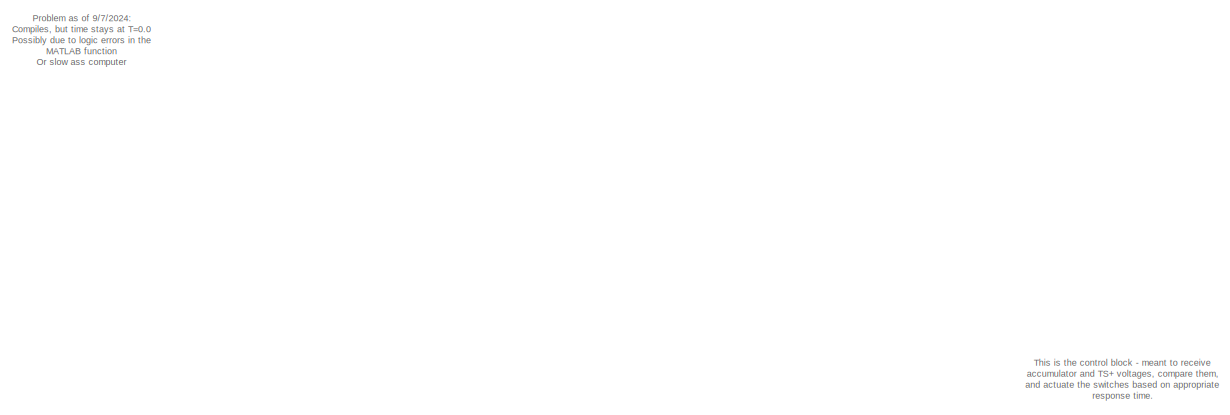
[diagram: root canvas - part 1/3, top left region]
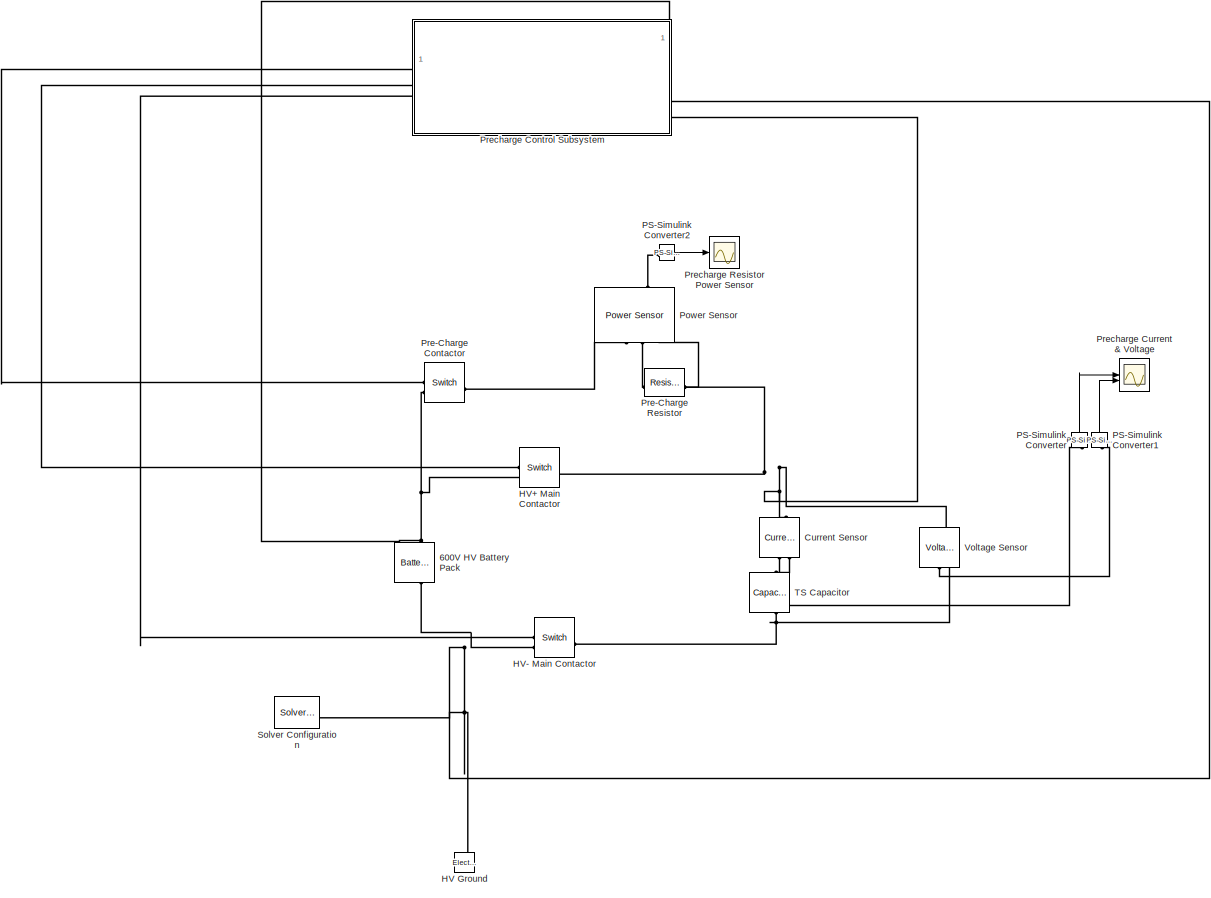
[diagram: root canvas - part 2/3, bottom right region]
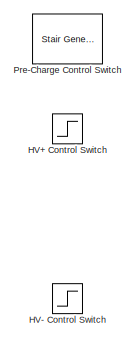
[diagram: root canvas - part 3/3, bottom left region]
MODEL slx_10897bfc6552
KIND model
CONFIG AbsTol = auto
CONFIG EnableMultiTasking = off
CONFIG FixedStep = auto
CONFIG MaxStep = 1
CONFIG MinStep = 0.05
CONFIG RelTol = 1e-3
CONFIG SampleTimeConstraint = Unconstrained
CONFIG SolverName = ode23tb
CONFIG StartTime = 0.0
CONFIG StopTime = 10
BLOCK [Reference] 600V HV Battery Pack  REF=batteryecm_lib/Battery
  LibrarySourceBlock = ee_lib/Sources/Battery
  NameLocation = right
  SourceBlock = batteryecm_lib/Battery
  SourceType = Battery
BLOCK [Reference] Current Sensor  REF=fl_lib/Electrical/Electrical Sensors/Current Sensor
  NameLocation = left
  SourceBlock = fl_lib/Electrical/Electrical Sensors/Current Sensor
  SourceType = Current Sensor
BLOCK [Reference] HV Ground  REF=fl_lib/Electrical/Electrical Elements/Electrical Reference
  NameLocation = right
  SourceBlock = fl_lib/Electrical/Electrical Elements/Electrical Reference
  SourceType = Electrical Reference
BLOCK [Step] HV+ Control Switch
  Commented = on
  SampleTime = 0
  Time = 8
BLOCK [Reference] HV+ Main Contactor  REF=fl_lib/Electrical/Electrical Elements/Switch
  SourceBlock = fl_lib/Electrical/Electrical Elements/Switch
  SourceType = Switch
BLOCK [Step] HV- Control Switch
  Commented = on
  SampleTime = 0
  Time = 1.5
BLOCK [Reference] HV- Main Contactor  REF=fl_lib/Electrical/Electrical Elements/Switch
  SourceBlock = fl_lib/Electrical/Electrical Elements/Switch
  SourceType = Switch
BLOCK [Reference] PS-Simulink Converter  REF=nesl_utility/PS-Simulink
Converter
  NameLocation = right
  SourceBlock = nesl_utility/PS-Simulink\nConverter
  SourceType = PS-Simulink\nConverter
BLOCK [Reference] PS-Simulink Converter1  REF=nesl_utility/PS-Simulink
Converter
  NameLocation = right
  SourceBlock = nesl_utility/PS-Simulink\nConverter
  SourceType = PS-Simulink\nConverter
BLOCK [Reference] PS-Simulink Converter2  REF=nesl_utility/PS-Simulink
Converter
  SourceBlock = nesl_utility/PS-Simulink\nConverter
  SourceType = PS-Simulink\nConverter
BLOCK [Reference] Power Sensor  REF=ee_lib/Sensors &
Transducers/Power Sensor
  NameLocation = right
  SourceBlock = ee_lib/Sensors &\nTransducers/Power Sensor
  SourceType = Power Sensor
BLOCK [Reference] Pre-Charge Contactor  REF=fl_lib/Electrical/Electrical Elements/Switch
  SourceBlock = fl_lib/Electrical/Electrical Elements/Switch
  SourceType = Switch
BLOCK [Reference] Pre-Charge Control Switch  REF=eeStairGenerator/Stair Generator
  Commented = on
  LibrarySourceBlock = ee_sl_lib/General Control/Stair Generator
  NameLocation = right
  SourceBlock = eeStairGenerator/Stair Generator
  SourceType = Stair Generator
BLOCK [Reference] Pre-Charge Resistor  REF=ee_lib/Passive/Resistor
  SourceBlock = ee_lib/Passive/Resistor
  SourceType = Resistor
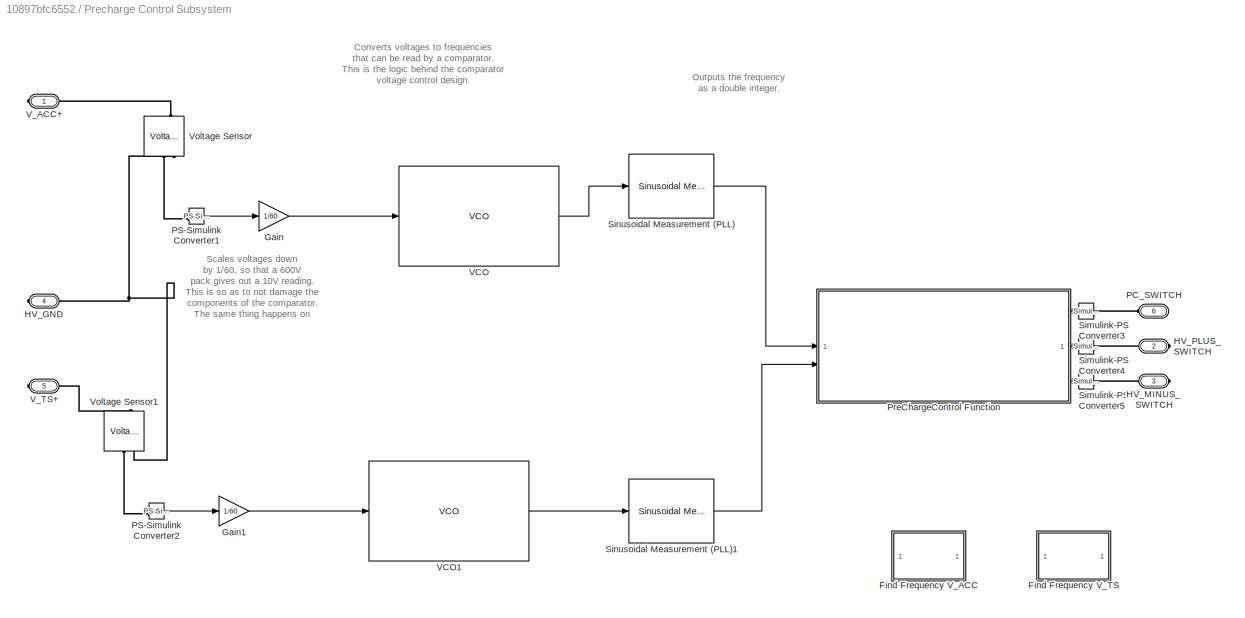
BLOCK [SubSystem] Precharge Control Subsystem
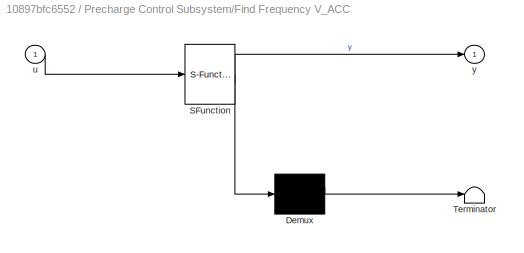
BLOCK [SubSystem] Precharge Control Subsystem/Find Frequency V_ACC
  Commented = on
  ErrorFcn = Stateflow.Translate.translate
  PermitHierarchicalResolution = ExplicitOnly
  SFBlockType = MATLAB Function
  TreatAsAtomicUnit = on
BLOCK [Demux] Precharge Control Subsystem/Find Frequency V_ACC/ Demux 
  Outputs = 1
BLOCK [S-Function] Precharge Control Subsystem/Find Frequency V_ACC/ SFunction 
  EnableBusSupport = off
  FunctionName = sf_sfun
  PortCounts = [1 2]
  SFcnIsStateOwnerBlock = off
  SFunctionDeploymentMode = off
  Tag = Stateflow S-Function 2
BLOCK [Terminator] Precharge Control Subsystem/Find Frequency V_ACC/ Terminator 
BLOCK [Inport] Precharge Control Subsystem/Find Frequency V_ACC/u
BLOCK [Outport] Precharge Control Subsystem/Find Frequency V_ACC/y
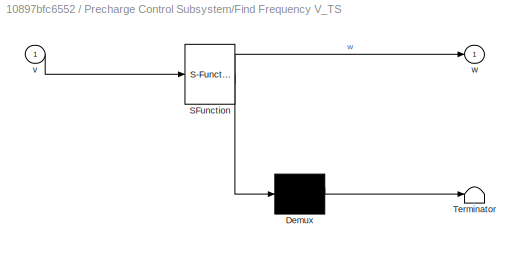
BLOCK [SubSystem] Precharge Control Subsystem/Find Frequency V_TS
  Commented = on
  ErrorFcn = Stateflow.Translate.translate
  PermitHierarchicalResolution = ExplicitOnly
  SFBlockType = MATLAB Function
  TreatAsAtomicUnit = on
BLOCK [Demux] Precharge Control Subsystem/Find Frequency V_TS/ Demux 
  Outputs = 1
BLOCK [S-Function] Precharge Control Subsystem/Find Frequency V_TS/ SFunction 
  EnableBusSupport = off
  FunctionName = sf_sfun
  PortCounts = [1 2]
  SFcnIsStateOwnerBlock = off
  SFunctionDeploymentMode = off
  Tag = Stateflow S-Function 1
BLOCK [Terminator] Precharge Control Subsystem/Find Frequency V_TS/ Terminator 
BLOCK [Inport] Precharge Control Subsystem/Find Frequency V_TS/v
BLOCK [Outport] Precharge Control Subsystem/Find Frequency V_TS/w
BLOCK [Gain] Precharge Control Subsystem/Gain
  Gain = 1/60
BLOCK [Gain] Precharge Control Subsystem/Gain1
  Gain = 1/60
BLOCK [PMIOPort] Precharge Control Subsystem/HV_GND
  Port = 4
  Side = Right
BLOCK [PMIOPort] Precharge Control Subsystem/HV_MINUS_SWITCH
  NameLocation = top
  Port = 3
  Side = Right
BLOCK [PMIOPort] Precharge Control Subsystem/HV_PLUS_SWITCH
  NameLocation = top
  Port = 2
  Side = Right
BLOCK [PMIOPort] Precharge Control Subsystem/PC_SWITCH
  NameLocation = top
  Port = 6
  Side = Left
BLOCK [Reference] Precharge Control Subsystem/PS-Simulink Converter1  REF=nesl_utility/PS-Simulink
Converter
  SourceBlock = nesl_utility/PS-Simulink\nConverter
  SourceType = PS-Simulink\nConverter
BLOCK [Reference] Precharge Control Subsystem/PS-Simulink Converter2  REF=nesl_utility/PS-Simulink
Converter
  SourceBlock = nesl_utility/PS-Simulink\nConverter
  SourceType = PS-Simulink\nConverter
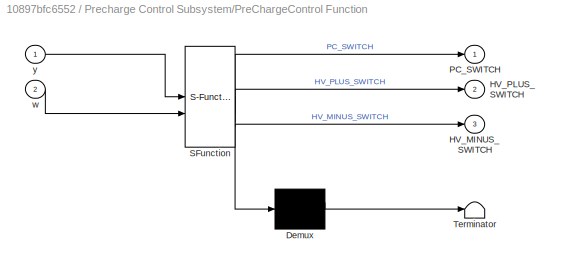
BLOCK [SubSystem] Precharge Control Subsystem/PreChargeControl Function
  ErrorFcn = Stateflow.Translate.translate
  PermitHierarchicalResolution = ExplicitOnly
  SFBlockType = MATLAB Function
  TreatAsAtomicUnit = on
BLOCK [Demux] Precharge Control Subsystem/PreChargeControl Function/ Demux 
  Outputs = 1
BLOCK [S-Function] Precharge Control Subsystem/PreChargeControl Function/ SFunction 
  EnableBusSupport = off
  FunctionName = sf_sfun
  PortCounts = [2 4]
  SFcnIsStateOwnerBlock = off
  SFunctionDeploymentMode = off
  Tag = Stateflow S-Function 3
BLOCK [Terminator] Precharge Control Subsystem/PreChargeControl Function/ Terminator 
BLOCK [Outport] Precharge Control Subsystem/PreChargeControl Function/HV_MINUS_SWITCH
  Port = 3
BLOCK [Outport] Precharge Control Subsystem/PreChargeControl Function/HV_PLUS_SWITCH
  Port = 2
BLOCK [Outport] Precharge Control Subsystem/PreChargeControl Function/PC_SWITCH
BLOCK [Inport] Precharge Control Subsystem/PreChargeControl Function/w
  Port = 2
BLOCK [Inport] Precharge Control Subsystem/PreChargeControl Function/y
BLOCK [Reference] Precharge Control Subsystem/Simulink-PS Converter3  REF=nesl_utility/Simulink-PS
Converter
  SourceBlock = nesl_utility/Simulink-PS\nConverter
  SourceType = Simulink-PS\nConverter
BLOCK [Reference] Precharge Control Subsystem/Simulink-PS Converter4  REF=nesl_utility/Simulink-PS
Converter
  SourceBlock = nesl_utility/Simulink-PS\nConverter
  SourceType = Simulink-PS\nConverter
BLOCK [Reference] Precharge Control Subsystem/Simulink-PS Converter5  REF=nesl_utility/Simulink-PS
Converter
  SourceBlock = nesl_utility/Simulink-PS\nConverter
  SourceType = Simulink-PS\nConverter
BLOCK [Reference] Precharge Control Subsystem/Sinusoidal Measurement (PLL)  REF=eeSinusoidalMeasurementV2/Sinusoidal Measurement
(PLL)
  LibrarySourceBlock = ee_sl_lib/Measurements/Sinusoidal Measurement\n(PLL)
  SourceBlock = eeSinusoidalMeasurementV2/Sinusoidal Measurement\n(PLL)
  SourceType = Sinusoidal Measurement (PLL)
BLOCK [Reference] Precharge Control Subsystem/Sinusoidal Measurement (PLL)1  REF=eeSinusoidalMeasurementV2/Sinusoidal Measurement
(PLL)
  LibrarySourceBlock = ee_sl_lib/Measurements/Sinusoidal Measurement\n(PLL)
  SourceBlock = eeSinusoidalMeasurementV2/Sinusoidal Measurement\n(PLL)
  SourceType = Sinusoidal Measurement (PLL)
BLOCK [Reference] Precharge Control Subsystem/VCO  REF=msbPllFoundation/VCO
  SourceBlock = msbPllFoundation/VCO
  SourceType = VCO
BLOCK [Reference] Precharge Control Subsystem/VCO1  REF=msbPllFoundation/VCO
  SourceBlock = msbPllFoundation/VCO
  SourceType = VCO
BLOCK [PMIOPort] Precharge Control Subsystem/V_ACC+
  Side = Right
BLOCK [PMIOPort] Precharge Control Subsystem/V_TS+
  Port = 5
  Side = Right
BLOCK [Reference] Precharge Control Subsystem/Voltage Sensor  REF=fl_lib/Electrical/Electrical Sensors/Voltage Sensor
  NameLocation = right
  SourceBlock = fl_lib/Electrical/Electrical Sensors/Voltage Sensor
  SourceType = Voltage Sensor
BLOCK [Reference] Precharge Control Subsystem/Voltage Sensor1  REF=fl_lib/Electrical/Electrical Sensors/Voltage Sensor
  NameLocation = right
  SourceBlock = fl_lib/Electrical/Electrical Sensors/Voltage Sensor
  SourceType = Voltage Sensor
BLOCK [Scope] Precharge Current & Voltage
  Floating = off
  NumInputPorts = 2
  ScopeSpecificationString = Simulink.scopes.TimeScopeBlockCfg('CurrentConfiguration', extmgr.ConfigurationSet(extmgr.Configuration('Core','General UI',true),extmgr.Configuration('Core','Source UI',true),extmgr.Configuration('Sources','WiredSimulink',true),extmgr.Configuration('Visuals','Time Domain',true,'SerializedDisplays',{struct('MinYLimReal','-2.54671','MaxYLimReal','3.10668','YLabelReal','','MinYLimMag','0.00000','MaxY...<+1862ch>
BLOCK [Scope] Precharge Resistor Power Sensor
  Floating = off
  NumInputPorts = 1
  ScopeSpecificationString = Simulink.scopes.TimeScopeBlockCfg('CurrentConfiguration', extmgr.ConfigurationSet(extmgr.Configuration('Core','General UI',true),extmgr.Configuration('Core','Source UI',true),extmgr.Configuration('Sources','WiredSimulink',true,'DataLoggingVariableName','ScopeData2'),extmgr.Configuration('Visuals','Time Domain',true,'SerializedDisplays',{struct('MinYLimReal','0.0000000021','MaxYLimReal','0.00000000...<+1550ch>
BLOCK [Reference] Solver Configuration  REF=nesl_utility/Solver
Configuration
  SourceBlock = nesl_utility/Solver\nConfiguration
  SourceType = Solver\nConfiguration
BLOCK [Reference] TS Capacitor  REF=fl_lib/Electrical/Electrical Elements/Capacitor
  NameLocation = left
  SourceBlock = fl_lib/Electrical/Electrical Elements/Capacitor
  SourceType = Capacitor
BLOCK [Reference] Voltage Sensor  REF=fl_lib/Electrical/Electrical Sensors/Voltage Sensor
  NameLocation = right
  SourceBlock = fl_lib/Electrical/Electrical Sensors/Voltage Sensor
  SourceType = Voltage Sensor
ANNOTATION (root): Problem as of 9/7/2024: Compiles, but time stays at T=0.0 Possibly due to logic errors in the MATLAB function Or slow ass computer
ANNOTATION (root): This is the control block - meant to receive accumulator and TS+ voltages, compare them, and actuate the switches based on appropriate response time.
ANNOTATION Precharge Control Subsystem: Converts voltages to frequencies that can be read by a comparator. This is the logic behind the comparator voltage control design.
ANNOTATION Precharge Control Subsystem: Outputs the frequency as a double integer.
ANNOTATION Precharge Control Subsystem: Scales voltages down by 1/60, so that a 600V pack gives out a 10V reading. This is so as to not damage the components of the comparator. The same thing happens on the tractive system side.
LINE PS-Simulink Converter1:1 -> Precharge Current & Voltage:2
LINE PS-Simulink Converter2:1 -> Precharge Resistor Power Sensor:1
LINE PS-Simulink Converter:1 -> Precharge Current & Voltage:1
LINE Precharge Control Subsystem/Gain1:1 -> Precharge Control Subsystem/VCO1:1
LINE Precharge Control Subsystem/Gain:1 -> Precharge Control Subsystem/VCO:1
LINE Precharge Control Subsystem/PS-Simulink Converter1:1 -> Precharge Control Subsystem/Gain:1
LINE Precharge Control Subsystem/PS-Simulink Converter2:1 -> Precharge Control Subsystem/Gain1:1
LINE Precharge Control Subsystem/PreChargeControl Function:1 -> Precharge Control Subsystem/Simulink-PS Converter3:1
LINE Precharge Control Subsystem/PreChargeControl Function:2 -> Precharge Control Subsystem/Simulink-PS Converter4:1
LINE Precharge Control Subsystem/PreChargeControl Function:3 -> Precharge Control Subsystem/Simulink-PS Converter5:1
LINE Precharge Control Subsystem/Sinusoidal Measurement (PLL)1:1 -> Precharge Control Subsystem/PreChargeControl Function:2
LINE Precharge Control Subsystem/Sinusoidal Measurement (PLL):1 -> Precharge Control Subsystem/PreChargeControl Function:1
LINE Precharge Control Subsystem/VCO1:1 -> Precharge Control Subsystem/Sinusoidal Measurement (PLL)1:1
LINE Precharge Control Subsystem/VCO:1 -> Precharge Control Subsystem/Sinusoidal Measurement (PLL):1
PNET net1: 600V HV Battery Pack:LConn1 -- HV+ Main Contactor:RConn2 -- Pre-Charge Contactor:RConn2 -- Precharge Control Subsystem:RConn1
PNET net2: 600V HV Battery Pack:RConn1 -- HV Ground:LConn1 -- HV- Main Contactor:RConn2 -- Precharge Control Subsystem:RConn4 -- Solver Configuration:RConn1
PNET net3: Current Sensor:LConn1 -- HV+ Main Contactor:LConn1 -- Power Sensor:LConn3 -- Pre-Charge Resistor:RConn1 -- Precharge Control Subsystem:RConn5 -- Voltage Sensor:LConn1
PLINE Current Sensor:RConn1 -- PS-Simulink Converter:LConn1
PLINE Current Sensor:RConn2 -- TS Capacitor:LConn1
PLINE HV+ Main Contactor:RConn1 -- Precharge Control Subsystem:RConn3
PNET net4: HV- Main Contactor:LConn1 -- TS Capacitor:RConn1 -- Voltage Sensor:RConn2
PLINE HV- Main Contactor:RConn1 -- Precharge Control Subsystem:LConn1
PLINE PS-Simulink Converter1:LConn1 -- Voltage Sensor:RConn1
PLINE PS-Simulink Converter2:LConn1 -- Power Sensor:RConn1
PLINE Power Sensor:LConn1 -- Pre-Charge Contactor:LConn1
PLINE Power Sensor:LConn2 -- Pre-Charge Resistor:LConn1
PLINE Pre-Charge Contactor:RConn1 -- Precharge Control Subsystem:RConn2
PNET net5: Precharge Control Subsystem/HV_GND:RConn1 -- Precharge Control Subsystem/Voltage Sensor1:RConn2 -- Precharge Control Subsystem/Voltage Sensor:RConn2
PLINE Precharge Control Subsystem/HV_MINUS_SWITCH:RConn1 -- Precharge Control Subsystem/Simulink-PS Converter5:RConn1
PLINE Precharge Control Subsystem/HV_PLUS_SWITCH:RConn1 -- Precharge Control Subsystem/Simulink-PS Converter4:RConn1
PLINE Precharge Control Subsystem/PC_SWITCH:RConn1 -- Precharge Control Subsystem/Simulink-PS Converter3:RConn1
PLINE Precharge Control Subsystem/PS-Simulink Converter1:LConn1 -- Precharge Control Subsystem/Voltage Sensor:RConn1
PLINE Precharge Control Subsystem/PS-Simulink Converter2:LConn1 -- Precharge Control Subsystem/Voltage Sensor1:RConn1
PLINE Precharge Control Subsystem/V_ACC+:RConn1 -- Precharge Control Subsystem/Voltage Sensor:LConn1
PLINE Precharge Control Subsystem/V_TS+:RConn1 -- Precharge Control Subsystem/Voltage Sensor1:LConn1
note: PNET lines group multi-terminal physical nets as a canonical sorted terminal list (undirected conserving connections); 2-terminal nets keep the pairwise PLINE form
CHART Precharge Control Subsystem/Find Frequency V_TS states=1 transitions=1
  STATE_LABEL 'eML_blk_kernel()'
  STATE_LABEL "SCRIPT:\nfunction w = FindFrequency(v)\n    % FindFrequency - Estimate the frequency of a sinusoidal signal.\n    % Input:\n    %   v - Vector of the sinusoidal signal values\n    % Output:\n    %   w - Estimated frequency of the sinusoidal signal in Hz\n\n    % Ensure the input is a row vector\n    v = v(:)';\n\n    % Time vector assuming a sampling frequency\n    fs = 1000; % Sampling frequency in Hz (adjus...<+713ch>"
CHART Precharge Control Subsystem/Find Frequency V_ACC states=1 transitions=1
  STATE_LABEL 'eML_blk_kernel()'
  STATE_LABEL "SCRIPT:\nfunction y = FindFrequency(u)\n    % FindFrequency - Estimate the frequency of a sinusoidal signal.\n    % Input:\n    %   u - Vector of the sinusoidal signal values\n    % Output:\n    %   y - Estimated frequency of the sinusoidal signal in Hz\n\n    % Ensure the input is a row vector\n    u = u(:)';\n\n    % Time vector assuming a sampling frequency\n    fs = 1000; % Sampling frequency in Hz (adjus...<+714ch>"
CHART Precharge Control Subsystem/PreChargeControl Function states=1 transitions=1
  STATE_LABEL 'eML_blk_kernel()'
  STATE_LABEL 'SCRIPT:\nfunction [PC_SWITCH, HV_PLUS_SWITCH, HV_MINUS_SWITCH] = PreChargeControl(y, w)\n    %Function Algorithm: \n    %1) Measure the voltage-based frequencies across the accumulator and\n    %TS, (y,w) respectively\n    %Send 1 to precharge and MINUS contactor switches\n    %2) When TS voltage is about 99% equal to ACC voltage (after 5TAU),\n    %CHECK if the time it took for this to happen is within ...<+1535ch>'
CHART  states=0 transitions=0
CHART  states=0 transitions=0
CHART  states=0 transitions=0
